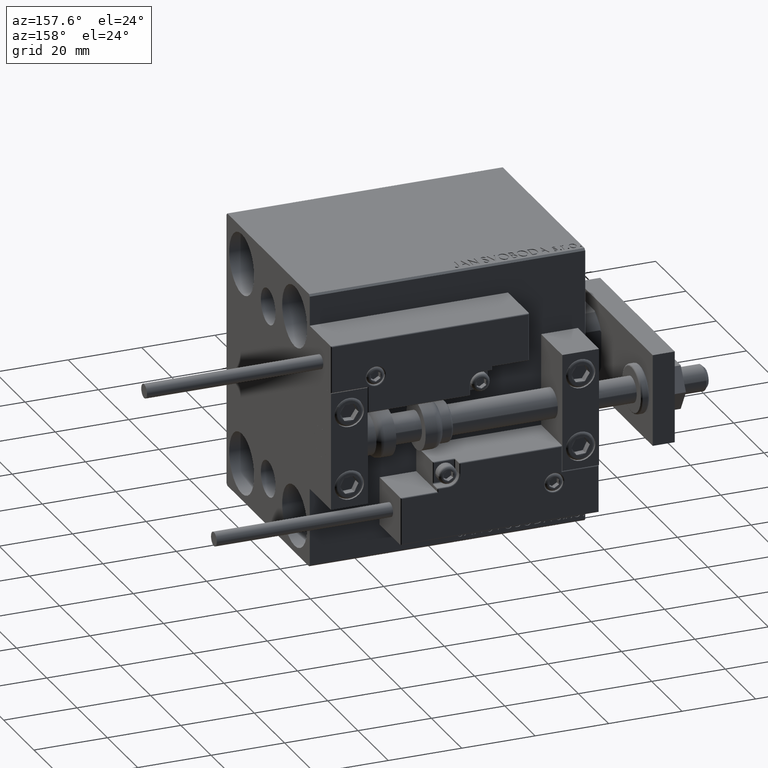
[diagram: clean part render]
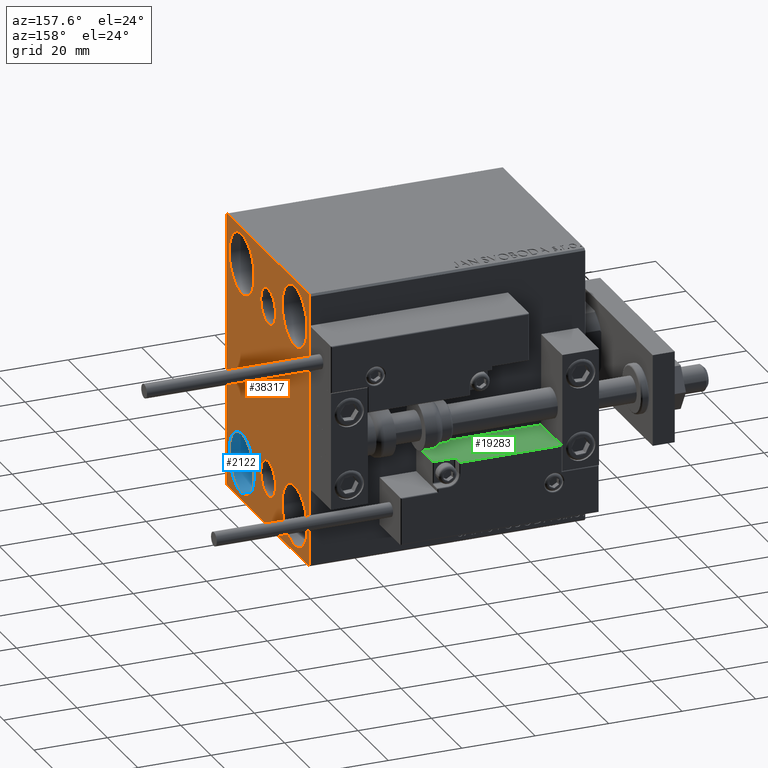
[diagram: same view with three faces highlighted in distinct colors, each labeled with its STEP entity id]
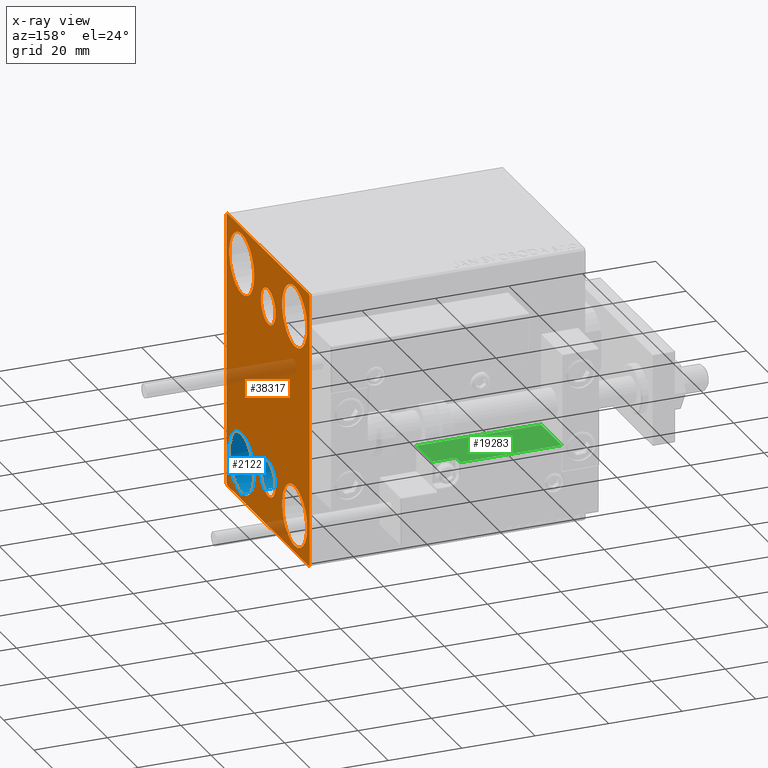
[diagram: x-ray of the same camera — body ghosted, the three highlighted faces saturated]
A machine part, auxiliary view with three faces highlighted in distinct colors.
The next image is the same camera in x-ray (body ghosted, the three faces saturated) — at least one of them is partly hidden behind the body in this view.
Their STEP definitions:

[orange] entity #38317 — the highlighted planar face has unit normal (1, 0, 0).
#437 = LINE ( 'NONE', #20345, #40530 ) ;
#925 = DIRECTION ( 'NONE',  ( 0.000000000000000000, 0.000000000000000000, -1.000000000000000000 ) ) ;
#948 = ORIENTED_EDGE ( 'NONE', *, *, #49727, .T. ) ;
#951 = ORIENTED_EDGE ( 'NONE', *, *, #46148, .F. ) ;
#1036 = CARTESIAN_POINT ( 'NONE',  ( 75.00000000000000000, -27.00000000000001776, 37.50000000000000000 ) ) ;
#1398 = DIRECTION ( 'NONE',  ( -1.000000000000000000, -0.000000000000000000, -0.000000000000000000 ) ) ;
#1818 = CIRCLE ( 'NONE', #13131, 4.859999999999999432 ) ;
#2641 = DIRECTION ( 'NONE',  ( 1.000000000000000000, 0.000000000000000000, 0.000000000000000000 ) ) ;
#3035 = ORIENTED_EDGE ( 'NONE', *, *, #15092, .T. ) ;
#3119 = DIRECTION ( 'NONE',  ( 0.000000000000000000, 0.000000000000000000, 1.000000000000000000 ) ) ;
#3146 = CIRCLE ( 'NONE', #9574, 4.859999999999999432 ) ;
#3645 = AXIS2_PLACEMENT_3D ( 'NONE', #33538, #10562, #44915 ) ;
#4178 = EDGE_CURVE ( 'NONE', #41570, #44800, #31664, .T. ) ;
#4481 = ORIENTED_EDGE ( 'NONE', *, *, #4178, .T. ) ;
#4548 = EDGE_CURVE ( 'NONE', #39430, #12763, #437, .T. ) ;
#5179 = DIRECTION ( 'NONE',  ( -1.000000000000000000, -0.000000000000000000, -0.000000000000000000 ) ) ;
#5537 = LINE ( 'NONE', #43664, #25779 ) ;
#5605 = DIRECTION ( 'NONE',  ( 0.000000000000000000, -0.7071067811865474617, -0.7071067811865474617 ) ) ;
#6630 = CIRCLE ( 'NONE', #10616, 8.250000000000000000 ) ;
#6828 = CARTESIAN_POINT ( 'NONE',  ( 75.00000000000000000, 27.50000000000000355, -37.50000000000000000 ) ) ;
#7518 = DIRECTION ( 'NONE',  ( -0.000000000000000000, -0.7071067811865426878, 0.7071067811865524577 ) ) ;
#7765 = EDGE_LOOP ( 'NONE', ( #23669, #39502 ) ) ;
#8576 = CARTESIAN_POINT ( 'NONE',  ( 75.00000000000000000, 17.50000000000000355, 19.25000000000000000 ) ) ;
#8668 = EDGE_CURVE ( 'NONE', #22422, #39430, #13672, .T. ) ;
#8674 = ORIENTED_EDGE ( 'NONE', *, *, #39537, .T. ) ;
#8677 = CARTESIAN_POINT ( 'NONE',  ( 75.00000000000000000, 27.49999999999999645, 37.50000000000000711 ) ) ;
#8825 = DIRECTION ( 'NONE',  ( 0.000000000000000000, 0.000000000000000000, -1.000000000000000000 ) ) ;
#8993 = VECTOR ( 'NONE', #7518, 1000.000000000000000 ) ;
#9308 = FACE_BOUND ( 'NONE', #23235, .T. ) ;
#9393 = VERTEX_POINT ( 'NONE', #47539 ) ;
#9478 = DIRECTION ( 'NONE',  ( 0.000000000000000000, 0.000000000000000000, 1.000000000000000000 ) ) ;
#9574 = AXIS2_PLACEMENT_3D ( 'NONE', #21802, #2641, #29131 ) ;
#10149 = AXIS2_PLACEMENT_3D ( 'NONE', #13486, #5179, #40753 ) ;
#10210 = VERTEX_POINT ( 'NONE', #27732 ) ;
#10455 = EDGE_LOOP ( 'NONE', ( #35477, #45324, #26202, #27783, #948, #3035, #19256, #17975 ) ) ;
#10562 = DIRECTION ( 'NONE',  ( -1.000000000000000000, -0.000000000000000000, -0.000000000000000000 ) ) ;
#10616 = AXIS2_PLACEMENT_3D ( 'NONE', #48749, #17690, #44966 ) ;
#10701 = AXIS2_PLACEMENT_3D ( 'NONE', #18916, #18665, #19413 ) ;
#11092 = CARTESIAN_POINT ( 'NONE',  ( 75.00000000000000000, 3.000384657911015074E-15, -24.49999999999999289 ) ) ;
#11890 = ORIENTED_EDGE ( 'NONE', *, *, #32164, .T. ) ;
#12763 = VERTEX_POINT ( 'NONE', #48501 ) ;
#13124 = EDGE_CURVE ( 'NONE', #33418, #37461, #25375, .T. ) ;
#13131 = AXIS2_PLACEMENT_3D ( 'NONE', #11092, #41892, #15375 ) ;
#13176 = CARTESIAN_POINT ( 'NONE',  ( 75.00000000000000000, 27.00000000000000355, -37.50000000000000000 ) ) ;
#13426 = CARTESIAN_POINT ( 'NONE',  ( 75.00000000000000000, 32.25000000000000000, -32.25000000000000000 ) ) ;
#13486 = CARTESIAN_POINT ( 'NONE',  ( 75.00000000000000000, -17.49999999999999645, 27.49999999999999645 ) ) ;
#13574 = CARTESIAN_POINT ( 'NONE',  ( 75.00000000000000000, -17.49999999999999645, 35.74999999999999289 ) ) ;
#13600 = DIRECTION ( 'NONE',  ( -0.000000000000000000, 0.7071067811865474617, -0.7071067811865474617 ) ) ;
#13672 = LINE ( 'NONE', #35904, #24559 ) ;
#13740 = EDGE_CURVE ( 'NONE', #38215, #23676, #44792, .T. ) ;
#14106 = DIRECTION ( 'NONE',  ( 0.000000000000000000, 0.000000000000000000, -1.000000000000000000 ) ) ;
#14866 = EDGE_CURVE ( 'NONE', #37461, #33418, #27860, .T. ) ;
#15092 = EDGE_CURVE ( 'NONE', #46724, #19281, #28071, .T. ) ;
#15375 = DIRECTION ( 'NONE',  ( 0.000000000000000000, 0.000000000000000000, 1.000000000000000000 ) ) ;
#15750 = EDGE_LOOP ( 'NONE', ( #8674, #4481 ) ) ;
#16003 = VERTEX_POINT ( 'NONE', #49549 ) ;
#16046 = EDGE_CURVE ( 'NONE', #16003, #17970, #49675, .T. ) ;
#16117 = CARTESIAN_POINT ( 'NONE',  ( 75.00000000000000000, -17.49999999999999645, 19.25000000000000000 ) ) ;
#16476 = DIRECTION ( 'NONE',  ( -1.000000000000000000, -0.000000000000000000, -0.000000000000000000 ) ) ;
#17670 = VERTEX_POINT ( 'NONE', #27076 ) ;
#17690 = DIRECTION ( 'NONE',  ( -1.000000000000000000, -0.000000000000000000, -0.000000000000000000 ) ) ;
#17970 = VERTEX_POINT ( 'NONE', #29064 ) ;
#17975 = ORIENTED_EDGE ( 'NONE', *, *, #38570, .T. ) ;
#18665 = DIRECTION ( 'NONE',  ( -1.000000000000000000, -0.000000000000000000, -0.000000000000000000 ) ) ;
#18695 = VERTEX_POINT ( 'NONE', #37597 ) ;
#18916 = CARTESIAN_POINT ( 'NONE',  ( 75.00000000000000000, 17.49999999999999645, -27.50000000000000355 ) ) ;
#19206 = ORIENTED_EDGE ( 'NONE', *, *, #29119, .F. ) ;
#19256 = ORIENTED_EDGE ( 'NONE', *, *, #23540, .T. ) ;
#19281 = VERTEX_POINT ( 'NONE', #26852 ) ;
#19304 = AXIS2_PLACEMENT_3D ( 'NONE', #35644, #30871, #26818 ) ;
#19413 = DIRECTION ( 'NONE',  ( 0.000000000000000000, 0.000000000000000000, 1.000000000000000000 ) ) ;
#19510 = CARTESIAN_POINT ( 'NONE',  ( 75.00000000000000000, -17.50000000000000355, -27.50000000000000355 ) ) ;
#20345 = CARTESIAN_POINT ( 'NONE',  ( 75.00000000000000000, -27.50000000000000355, 37.50000000000000000 ) ) ;
#20623 = VECTOR ( 'NONE', #47775, 1000.000000000000114 ) ;
#21151 = FACE_BOUND ( 'NONE', #7765, .T. ) ;
#21705 = EDGE_CURVE ( 'NONE', #18695, #23409, #38566, .T. ) ;
#21802 = CARTESIAN_POINT ( 'NONE',  ( 75.00000000000000000, -3.571693674697836683E-15, 23.00000000000000711 ) ) ;
#22014 = CARTESIAN_POINT ( 'NONE',  ( 75.00000000000000000, 17.49999999999999645, -35.75000000000000711 ) ) ;
#22176 = EDGE_LOOP ( 'NONE', ( #32389, #40684 ) ) ;
#22197 = DIRECTION ( 'NONE',  ( 0.000000000000000000, -9.251858538542970348E-17, 1.000000000000000000 ) ) ;
#22298 = VERTEX_POINT ( 'NONE', #49278 ) ;
#22329 = CARTESIAN_POINT ( 'NONE',  ( 75.00000000000000000, 27.00000000000001066, 37.50000000000000711 ) ) ;
#22422 = VERTEX_POINT ( 'NONE', #1036 ) ;
#22502 = CIRCLE ( 'NONE', #19304, 8.249999999999992895 ) ;
#23235 = EDGE_LOOP ( 'NONE', ( #951, #19206 ) ) ;
#23299 = DIRECTION ( 'NONE',  ( 0.000000000000000000, 0.000000000000000000, 1.000000000000000000 ) ) ;
#23409 = VERTEX_POINT ( 'NONE', #39650 ) ;
#23540 = EDGE_CURVE ( 'NONE', #19281, #10210, #41393, .T. ) ;
#23669 = ORIENTED_EDGE ( 'NONE', *, *, #41969, .F. ) ;
#23676 = VERTEX_POINT ( 'NONE', #35808 ) ;
#23880 = DIRECTION ( 'NONE',  ( 0.000000000000000000, 1.000000000000000000, 0.000000000000000000 ) ) ;
#24054 = LINE ( 'NONE', #8677, #39584 ) ;
#24559 = VECTOR ( 'NONE', #5605, 1000.000000000000114 ) ;
#24591 = CARTESIAN_POINT ( 'NONE',  ( 75.00000000000000000, 17.50000000000000355, 27.49999999999999645 ) ) ;
#24690 = FACE_OUTER_BOUND ( 'NONE', #10455, .T. ) ;
#25375 = CIRCLE ( 'NONE', #3645, 8.249999999999992895 ) ;
#25779 = VECTOR ( 'NONE', #13600, 1000.000000000000114 ) ;
#26202 = ORIENTED_EDGE ( 'NONE', *, *, #4548, .T. ) ;
#26818 = DIRECTION ( 'NONE',  ( 0.000000000000000000, 0.000000000000000000, 1.000000000000000000 ) ) ;
#26852 = CARTESIAN_POINT ( 'NONE',  ( 75.00000000000000000, 27.50000000000000355, -37.00000000000000000 ) ) ;
#27076 = CARTESIAN_POINT ( 'NONE',  ( 75.00000000000000000, -3.571693674697836683E-15, 18.14000000000000767 ) ) ;
#27173 = CARTESIAN_POINT ( 'NONE',  ( 75.00000000000000000, 32.25000000000019185, 32.24999999999975131 ) ) ;
#27732 = CARTESIAN_POINT ( 'NONE',  ( 75.00000000000000000, 27.49999999999999645, 37.00000000000001421 ) ) ;
#27783 = ORIENTED_EDGE ( 'NONE', *, *, #30564, .T. ) ;
#27860 = CIRCLE ( 'NONE', #10149, 8.249999999999992895 ) ;
#27898 = CARTESIAN_POINT ( 'NONE',  ( 75.00000000000000000, -17.50000000000000355, -27.50000000000000355 ) ) ;
#28071 = LINE ( 'NONE', #13426, #20623 ) ;
#28480 = FACE_BOUND ( 'NONE', #30690, .T. ) ;
#28651 = EDGE_LOOP ( 'NONE', ( #46847, #34534 ) ) ;
#29064 = CARTESIAN_POINT ( 'NONE',  ( 75.00000000000000000, 3.000384657911015074E-15, -29.35999999999999233 ) ) ;
#29119 = EDGE_CURVE ( 'NONE', #9393, #17670, #3146, .T. ) ;
#29131 = DIRECTION ( 'NONE',  ( 0.000000000000000000, 0.000000000000000000, -1.000000000000000000 ) ) ;
#29492 = VECTOR ( 'NONE', #23880, 1000.000000000000000 ) ;
#30003 = EDGE_CURVE ( 'NONE', #23676, #38215, #22502, .T. ) ;
#30564 = EDGE_CURVE ( 'NONE', #12763, #22298, #5537, .T. ) ;
#30690 = EDGE_LOOP ( 'NONE', ( #48018, #11890 ) ) ;
#30871 = DIRECTION ( 'NONE',  ( -1.000000000000000000, -0.000000000000000000, -0.000000000000000000 ) ) ;
#31664 = CIRCLE ( 'NONE', #10701, 8.250000000000000000 ) ;
#31945 = AXIS2_PLACEMENT_3D ( 'NONE', #45770, #42465, #3119 ) ;
#32164 = EDGE_CURVE ( 'NONE', #23409, #18695, #45975, .T. ) ;
#32389 = ORIENTED_EDGE ( 'NONE', *, *, #13740, .T. ) ;
#32919 = DIRECTION ( 'NONE',  ( 0.000000000000000000, 0.000000000000000000, 1.000000000000000000 ) ) ;
#33418 = VERTEX_POINT ( 'NONE', #16117 ) ;
#33538 = CARTESIAN_POINT ( 'NONE',  ( 75.00000000000000000, -17.49999999999999645, 27.49999999999999645 ) ) ;
#34020 = LINE ( 'NONE', #27173, #8993 ) ;
#34534 = ORIENTED_EDGE ( 'NONE', *, *, #14866, .T. ) ;
#34698 = EDGE_CURVE ( 'NONE', #46058, #22422, #24054, .T. ) ;
#35477 = ORIENTED_EDGE ( 'NONE', *, *, #34698, .T. ) ;
#35486 = AXIS2_PLACEMENT_3D ( 'NONE', #19510, #16476, #23299 ) ;
#35644 = CARTESIAN_POINT ( 'NONE',  ( 75.00000000000000000, 17.50000000000000355, 27.49999999999999645 ) ) ;
#35808 = CARTESIAN_POINT ( 'NONE',  ( 75.00000000000000000, 17.50000000000000355, 35.74999999999999289 ) ) ;
#35904 = CARTESIAN_POINT ( 'NONE',  ( 75.00000000000000000, -32.25000000000000711, 32.25000000000000711 ) ) ;
#35962 = DIRECTION ( 'NONE',  ( -1.000000000000000000, -0.000000000000000000, -0.000000000000000000 ) ) ;
#37327 = CARTESIAN_POINT ( 'NONE',  ( 75.00000000000000000, -3.571693674697836683E-15, 23.00000000000000711 ) ) ;
#37461 = VERTEX_POINT ( 'NONE', #13574 ) ;
#37597 = CARTESIAN_POINT ( 'NONE',  ( 75.00000000000000000, -17.50000000000000355, -35.75000000000000711 ) ) ;
#38215 = VERTEX_POINT ( 'NONE', #8576 ) ;
#38317 = ADVANCED_FACE ( 'NONE', ( #9308, #21151, #47937, #43142, #47444, #28480, #24690 ), #44137, .T. ) ;
#38566 = CIRCLE ( 'NONE', #48242, 8.250000000000000000 ) ;
#38570 = EDGE_CURVE ( 'NONE', #10210, #46058, #34020, .T. ) ;
#38636 = VECTOR ( 'NONE', #22197, 1000.000000000000000 ) ;
#39430 = VERTEX_POINT ( 'NONE', #43958 ) ;
#39502 = ORIENTED_EDGE ( 'NONE', *, *, #16046, .F. ) ;
#39528 = LINE ( 'NONE', #43076, #29492 ) ;
#39537 = EDGE_CURVE ( 'NONE', #44800, #41570, #6630, .T. ) ;
#39584 = VECTOR ( 'NONE', #47051, 1000.000000000000000 ) ;
#39650 = CARTESIAN_POINT ( 'NONE',  ( 75.00000000000000000, -17.50000000000000355, -19.25000000000000355 ) ) ;
#40096 = DIRECTION ( 'NONE',  ( 1.000000000000000000, 0.000000000000000000, 0.000000000000000000 ) ) ;
#40530 = VECTOR ( 'NONE', #925, 1000.000000000000000 ) ;
#40684 = ORIENTED_EDGE ( 'NONE', *, *, #30003, .T. ) ;
#40753 = DIRECTION ( 'NONE',  ( 0.000000000000000000, 0.000000000000000000, 1.000000000000000000 ) ) ;
#41317 = AXIS2_PLACEMENT_3D ( 'NONE', #43398, #40096, #8825 ) ;
#41393 = LINE ( 'NONE', #6828, #38636 ) ;
#41570 = VERTEX_POINT ( 'NONE', #44755 ) ;
#41892 = DIRECTION ( 'NONE',  ( 1.000000000000000000, 0.000000000000000000, -0.000000000000000000 ) ) ;
#41969 = EDGE_CURVE ( 'NONE', #17970, #16003, #1818, .T. ) ;
#42465 = DIRECTION ( 'NONE',  ( 1.000000000000000000, 0.000000000000000000, -0.000000000000000000 ) ) ;
#43076 = CARTESIAN_POINT ( 'NONE',  ( 75.00000000000000000, -27.50000000000000355, -37.50000000000000000 ) ) ;
#43142 = FACE_BOUND ( 'NONE', #28651, .T. ) ;
#43398 = CARTESIAN_POINT ( 'NONE',  ( 75.00000000000000000, 0.000000000000000000, 0.000000000000000000 ) ) ;
#43664 = CARTESIAN_POINT ( 'NONE',  ( 75.00000000000000000, -32.25000000000000000, -32.25000000000000000 ) ) ;
#43905 = AXIS2_PLACEMENT_3D ( 'NONE', #37327, #45169, #14106 ) ;
#43952 = AXIS2_PLACEMENT_3D ( 'NONE', #24591, #35962, #32919 ) ;
#43958 = CARTESIAN_POINT ( 'NONE',  ( 75.00000000000000000, -27.50000000000000355, 37.00000000000001421 ) ) ;
#44137 = PLANE ( 'NONE',  #41317 ) ;
#44755 = CARTESIAN_POINT ( 'NONE',  ( 75.00000000000000000, 17.49999999999999645, -19.25000000000000355 ) ) ;
#44792 = CIRCLE ( 'NONE', #43952, 8.249999999999992895 ) ;
#44800 = VERTEX_POINT ( 'NONE', #22014 ) ;
#44915 = DIRECTION ( 'NONE',  ( 0.000000000000000000, 0.000000000000000000, 1.000000000000000000 ) ) ;
#44966 = DIRECTION ( 'NONE',  ( 0.000000000000000000, 0.000000000000000000, 1.000000000000000000 ) ) ;
#45169 = DIRECTION ( 'NONE',  ( 1.000000000000000000, 0.000000000000000000, 0.000000000000000000 ) ) ;
#45324 = ORIENTED_EDGE ( 'NONE', *, *, #8668, .T. ) ;
#45770 = CARTESIAN_POINT ( 'NONE',  ( 75.00000000000000000, 3.000384657911015074E-15, -24.49999999999999289 ) ) ;
#45975 = CIRCLE ( 'NONE', #35486, 8.250000000000000000 ) ;
#46058 = VERTEX_POINT ( 'NONE', #22329 ) ;
#46148 = EDGE_CURVE ( 'NONE', #17670, #9393, #46334, .T. ) ;
#46334 = CIRCLE ( 'NONE', #43905, 4.859999999999999432 ) ;
#46724 = VERTEX_POINT ( 'NONE', #13176 ) ;
#46847 = ORIENTED_EDGE ( 'NONE', *, *, #13124, .T. ) ;
#47051 = DIRECTION ( 'NONE',  ( 0.000000000000000000, -1.000000000000000000, -1.261617073437677999E-16 ) ) ;
#47444 = FACE_BOUND ( 'NONE', #22176, .T. ) ;
#47539 = CARTESIAN_POINT ( 'NONE',  ( 75.00000000000000000, -2.976515330312223406E-15, 27.86000000000000654 ) ) ;
#47775 = DIRECTION ( 'NONE',  ( -0.000000000000000000, 0.7071067811865474617, 0.7071067811865474617 ) ) ;
#47937 = FACE_BOUND ( 'NONE', #15750, .T. ) ;
#48018 = ORIENTED_EDGE ( 'NONE', *, *, #21705, .T. ) ;
#48242 = AXIS2_PLACEMENT_3D ( 'NONE', #27898, #1398, #9478 ) ;
#48501 = CARTESIAN_POINT ( 'NONE',  ( 75.00000000000000000, -27.50000000000000355, -37.00000000000000000 ) ) ;
#48749 = CARTESIAN_POINT ( 'NONE',  ( 75.00000000000000000, 17.49999999999999645, -27.50000000000000355 ) ) ;
#49278 = CARTESIAN_POINT ( 'NONE',  ( 75.00000000000000000, -27.00000000000000355, -37.50000000000000000 ) ) ;
#49549 = CARTESIAN_POINT ( 'NONE',  ( 75.00000000000000000, 3.595563002296627957E-15, -19.63999999999999346 ) ) ;
#49675 = CIRCLE ( 'NONE', #31945, 4.859999999999999432 ) ;
#49727 = EDGE_CURVE ( 'NONE', #22298, #46724, #39528, .T. ) ;

[blue] entity #2122 — the highlighted cylindrical surface (edge-blend (fillet) strip) has radius 8.25 mm, axis along (1, 0, 0).
#874 = CARTESIAN_POINT ( 'NONE',  ( 64.00000000000000000, -17.50000000000000355, -27.50000000000000355 ) ) ;
#1398 = DIRECTION ( 'NONE',  ( -1.000000000000000000, -0.000000000000000000, -0.000000000000000000 ) ) ;
#1918 = FACE_OUTER_BOUND ( 'NONE', #24230, .T. ) ;
#2122 = ADVANCED_FACE ( 'NONE', ( #1918 ), #13516, .F. ) ;
#3051 = CARTESIAN_POINT ( 'NONE',  ( 64.00000000000000000, -17.50000000000000355, -35.75000000000000711 ) ) ;
#3419 = LINE ( 'NONE', #7203, #20765 ) ;
#4738 = ORIENTED_EDGE ( 'NONE', *, *, #36881, .F. ) ;
#7203 = CARTESIAN_POINT ( 'NONE',  ( 64.00000000000000000, -17.50000000000000355, -19.25000000000000355 ) ) ;
#9478 = DIRECTION ( 'NONE',  ( 0.000000000000000000, 0.000000000000000000, 1.000000000000000000 ) ) ;
#10006 = AXIS2_PLACEMENT_3D ( 'NONE', #874, #24322, #31659 ) ;
#10746 = EDGE_CURVE ( 'NONE', #35350, #24214, #14939, .T. ) ;
#11119 = CARTESIAN_POINT ( 'NONE',  ( 64.00000000000000000, -17.50000000000000355, -19.25000000000000355 ) ) ;
#13516 = CYLINDRICAL_SURFACE ( 'NONE', #34010, 8.250000000000000000 ) ;
#14939 = CIRCLE ( 'NONE', #10006, 8.250000000000000000 ) ;
#17304 = DIRECTION ( 'NONE',  ( 1.000000000000000000, -0.000000000000000000, -0.000000000000000000 ) ) ;
#18695 = VERTEX_POINT ( 'NONE', #37597 ) ;
#18924 = DIRECTION ( 'NONE',  ( 1.000000000000000000, -0.000000000000000000, -0.000000000000000000 ) ) ;
#19068 = ORIENTED_EDGE ( 'NONE', *, *, #10746, .T. ) ;
#19306 = EDGE_CURVE ( 'NONE', #24214, #23409, #3419, .T. ) ;
#19765 = ORIENTED_EDGE ( 'NONE', *, *, #21705, .F. ) ;
#20765 = VECTOR ( 'NONE', #29908, 1000.000000000000000 ) ;
#21705 = EDGE_CURVE ( 'NONE', #18695, #23409, #38566, .T. ) ;
#23409 = VERTEX_POINT ( 'NONE', #39650 ) ;
#24214 = VERTEX_POINT ( 'NONE', #11119 ) ;
#24230 = EDGE_LOOP ( 'NONE', ( #19068, #46387, #19765, #4738 ) ) ;
#24322 = DIRECTION ( 'NONE',  ( -1.000000000000000000, -0.000000000000000000, -0.000000000000000000 ) ) ;
#25920 = CARTESIAN_POINT ( 'NONE',  ( 64.00000000000000000, -17.50000000000000355, -35.75000000000000711 ) ) ;
#27898 = CARTESIAN_POINT ( 'NONE',  ( 75.00000000000000000, -17.50000000000000355, -27.50000000000000355 ) ) ;
#29908 = DIRECTION ( 'NONE',  ( 1.000000000000000000, -0.000000000000000000, -0.000000000000000000 ) ) ;
#31659 = DIRECTION ( 'NONE',  ( 0.000000000000000000, 0.000000000000000000, 1.000000000000000000 ) ) ;
#34010 = AXIS2_PLACEMENT_3D ( 'NONE', #47621, #17304, #43326 ) ;
#35350 = VERTEX_POINT ( 'NONE', #25920 ) ;
#35623 = VECTOR ( 'NONE', #18924, 1000.000000000000000 ) ;
#36881 = EDGE_CURVE ( 'NONE', #35350, #18695, #37618, .T. ) ;
#37597 = CARTESIAN_POINT ( 'NONE',  ( 75.00000000000000000, -17.50000000000000355, -35.75000000000000711 ) ) ;
#37618 = LINE ( 'NONE', #3051, #35623 ) ;
#38566 = CIRCLE ( 'NONE', #48242, 8.250000000000000000 ) ;
#39650 = CARTESIAN_POINT ( 'NONE',  ( 75.00000000000000000, -17.50000000000000355, -19.25000000000000355 ) ) ;
#43326 = DIRECTION ( 'NONE',  ( 0.000000000000000000, 0.000000000000000000, -1.000000000000000000 ) ) ;
#46387 = ORIENTED_EDGE ( 'NONE', *, *, #19306, .T. ) ;
#47621 = CARTESIAN_POINT ( 'NONE',  ( 64.00000000000000000, -17.50000000000000355, -27.50000000000000355 ) ) ;
#48242 = AXIS2_PLACEMENT_3D ( 'NONE', #27898, #1398, #9478 ) ;

[green] entity #19283 — the highlighted planar face has unit normal (-0, -0, -1).
#239 = CARTESIAN_POINT ( 'NONE',  ( 11.00000000000000000, 3.252606517456513302E-15, 10.69999999999999929 ) ) ;
#561 = VECTOR ( 'NONE', #18388, 1000.000000000000000 ) ;
#2014 = VERTEX_POINT ( 'NONE', #16074 ) ;
#4977 = ORIENTED_EDGE ( 'NONE', *, *, #18362, .T. ) ;
#5630 = LINE ( 'NONE', #5879, #35003 ) ;
#5879 = CARTESIAN_POINT ( 'NONE',  ( 10.70000000000000107, 3.252606517456513302E-15, 14.00000000000000000 ) ) ;
#6922 = VECTOR ( 'NONE', #31685, 1000.000000000000000 ) ;
#9292 = CARTESIAN_POINT ( 'NONE',  ( -16.99999999999999289, 3.252606517456513302E-15, 14.00000000000000000 ) ) ;
#10822 = CARTESIAN_POINT ( 'NONE',  ( -16.99999999999999289, 3.252606517456513302E-15, 13.70000000000000107 ) ) ;
#11521 = VECTOR ( 'NONE', #32254, 1000.000000000000000 ) ;
#12094 = LINE ( 'NONE', #239, #21559 ) ;
#13012 = VERTEX_POINT ( 'NONE', #42410 ) ;
#13912 = CARTESIAN_POINT ( 'NONE',  ( 10.70000000000000107, 3.252606517456513302E-15, 11.29999999999999893 ) ) ;
#14670 = EDGE_CURVE ( 'NONE', #2014, #32825, #38509, .T. ) ;
#15261 = FACE_OUTER_BOUND ( 'NONE', #22074, .T. ) ;
#16074 = CARTESIAN_POINT ( 'NONE',  ( -16.99999999999999289, 3.252606517456513302E-15, 0.000000000000000000 ) ) ;
#16537 = CARTESIAN_POINT ( 'NONE',  ( -16.99999999999999289, 3.252606517456513302E-15, 13.70000000000000107 ) ) ;
#16739 = DIRECTION ( 'NONE',  ( 0.000000000000000000, -0.000000000000000000, 1.000000000000000000 ) ) ;
#16740 = AXIS2_PLACEMENT_3D ( 'NONE', #26606, #26363, #48858 ) ;
#17954 = ORIENTED_EDGE ( 'NONE', *, *, #19559, .F. ) ;
#18031 = VERTEX_POINT ( 'NONE', #13912 ) ;
#18362 = EDGE_CURVE ( 'NONE', #29202, #46315, #49687, .T. ) ;
#18388 = DIRECTION ( 'NONE',  ( -1.000000000000000000, 0.000000000000000000, -0.000000000000000000 ) ) ;
#19283 = ADVANCED_FACE ( 'NONE', ( #15261 ), #45573, .F. ) ;
#19559 = EDGE_CURVE ( 'NONE', #42109, #32825, #45198, .T. ) ;
#19766 = EDGE_CURVE ( 'NONE', #42109, #13012, #12094, .T. ) ;
#21449 = CARTESIAN_POINT ( 'NONE',  ( 16.99999999999999289, 3.252606517456513302E-15, 14.00000000000000000 ) ) ;
#21559 = VECTOR ( 'NONE', #31390, 1000.000000000000000 ) ;
#22074 = EDGE_LOOP ( 'NONE', ( #17954, #44128, #32095, #30892, #4977, #30395, #42846 ) ) ;
#22697 = CARTESIAN_POINT ( 'NONE',  ( 11.29999999999999893, 3.252606517456513302E-15, 11.29999999999999893 ) ) ;
#25229 = DIRECTION ( 'NONE',  ( -0.000000000000000000, -0.000000000000000000, -1.000000000000000000 ) ) ;
#26164 = CIRCLE ( 'NONE', #26957, 0.5999999999999998668 ) ;
#26363 = DIRECTION ( 'NONE',  ( 0.000000000000000000, 1.000000000000000000, 0.000000000000000000 ) ) ;
#26606 = CARTESIAN_POINT ( 'NONE',  ( -16.99999999999999289, 3.252606517456513302E-15, 14.00000000000000000 ) ) ;
#26957 = AXIS2_PLACEMENT_3D ( 'NONE', #22697, #33329, #48985 ) ;
#27211 = VECTOR ( 'NONE', #25229, 1000.000000000000000 ) ;
#27716 = CARTESIAN_POINT ( 'NONE',  ( 16.99999999999999289, 3.252606517456513302E-15, 10.69999999999999929 ) ) ;
#29202 = VERTEX_POINT ( 'NONE', #41862 ) ;
#30395 = ORIENTED_EDGE ( 'NONE', *, *, #42094, .T. ) ;
#30892 = ORIENTED_EDGE ( 'NONE', *, *, #44629, .T. ) ;
#31193 = CARTESIAN_POINT ( 'NONE',  ( -16.99999999999999289, 3.252606517456513302E-15, 0.000000000000000000 ) ) ;
#31390 = DIRECTION ( 'NONE',  ( -1.000000000000000000, 0.000000000000000000, -0.000000000000000000 ) ) ;
#31685 = DIRECTION ( 'NONE',  ( 1.000000000000000000, 0.000000000000000000, 0.000000000000000000 ) ) ;
#32095 = ORIENTED_EDGE ( 'NONE', *, *, #45726, .F. ) ;
#32254 = DIRECTION ( 'NONE',  ( -0.000000000000000000, -0.000000000000000000, -1.000000000000000000 ) ) ;
#32825 = VERTEX_POINT ( 'NONE', #35482 ) ;
#33329 = DIRECTION ( 'NONE',  ( -0.000000000000000000, -1.000000000000000000, -0.000000000000000000 ) ) ;
#35003 = VECTOR ( 'NONE', #16739, 1000.000000000000000 ) ;
#35482 = CARTESIAN_POINT ( 'NONE',  ( 16.99999999999999289, 3.252606517456513302E-15, 0.000000000000000000 ) ) ;
#38509 = LINE ( 'NONE', #31193, #6922 ) ;
#39832 = LINE ( 'NONE', #9292, #11521 ) ;
#41862 = CARTESIAN_POINT ( 'NONE',  ( 10.70000000000000107, 3.252606517456513302E-15, 13.70000000000000107 ) ) ;
#42094 = EDGE_CURVE ( 'NONE', #46315, #2014, #39832, .T. ) ;
#42109 = VERTEX_POINT ( 'NONE', #27716 ) ;
#42410 = CARTESIAN_POINT ( 'NONE',  ( 11.29999999999999893, 3.252606517456513302E-15, 10.69999999999999929 ) ) ;
#42846 = ORIENTED_EDGE ( 'NONE', *, *, #14670, .T. ) ;
#44128 = ORIENTED_EDGE ( 'NONE', *, *, #19766, .T. ) ;
#44629 = EDGE_CURVE ( 'NONE', #18031, #29202, #5630, .T. ) ;
#45198 = LINE ( 'NONE', #21449, #27211 ) ;
#45573 = PLANE ( 'NONE',  #16740 ) ;
#45726 = EDGE_CURVE ( 'NONE', #18031, #13012, #26164, .T. ) ;
#46315 = VERTEX_POINT ( 'NONE', #16537 ) ;
#48858 = DIRECTION ( 'NONE',  ( 0.000000000000000000, -0.000000000000000000, 1.000000000000000000 ) ) ;
#48985 = DIRECTION ( 'NONE',  ( 0.000000000000000000, 0.000000000000000000, 1.000000000000000000 ) ) ;
#49687 = LINE ( 'NONE', #10822, #561 ) ;